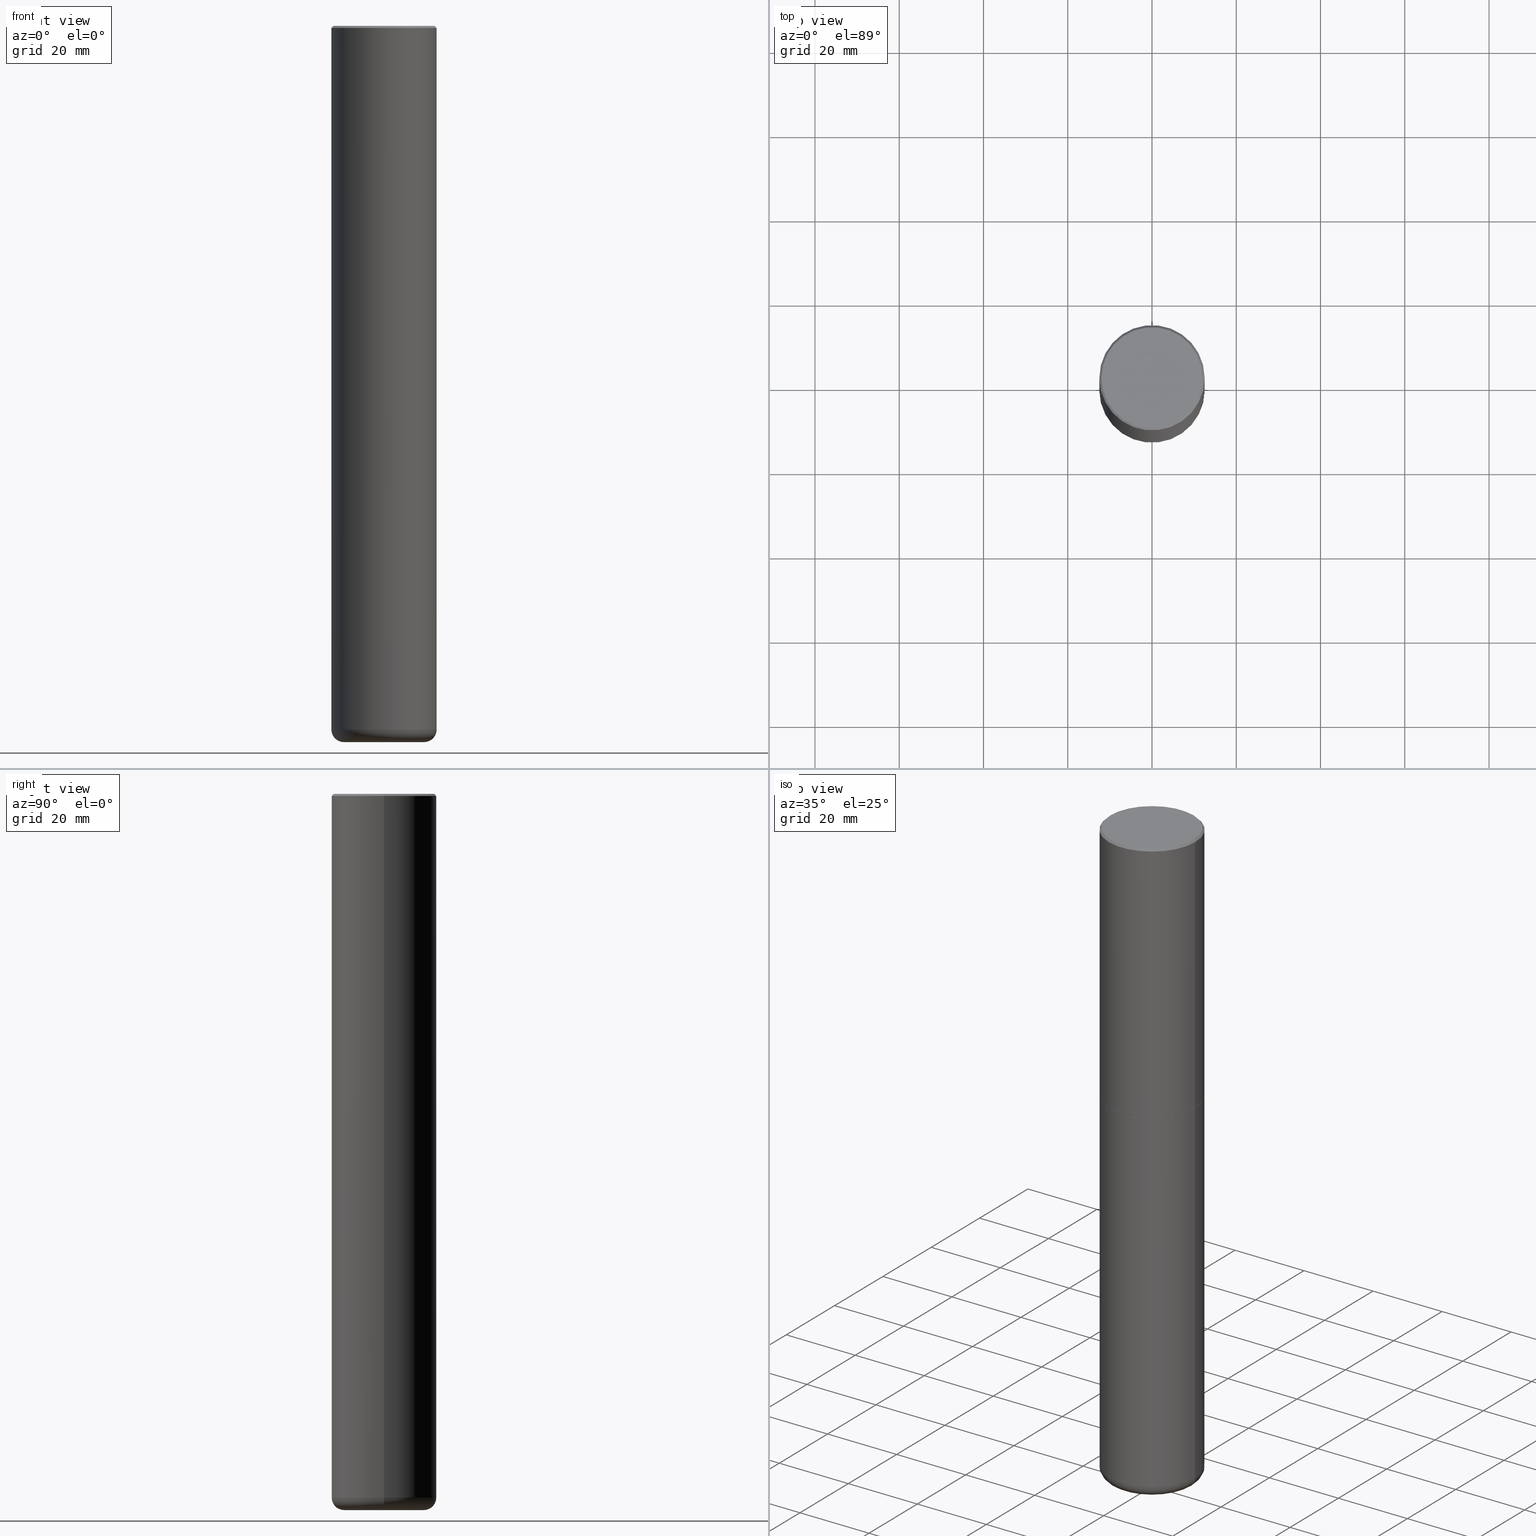
[diagram: canonical four-view strip — front | top / right | iso, engineering-drawing reading convention]
A machine part, canonical four-view strip (front | top / right | iso — engineering-drawing reading convention). The complete STEP part file that produces these views, byte-faithful:
ISO-10303-21;
HEADER;
FILE_DESCRIPTION (( 'STEP AP203' ),
    '1' );
FILE_NAME ('74599.STEP',
    '2024-03-06T15:36:42',
    ( '' ),
    ( '' ),
    'SwSTEP 2.0',
    'SolidWorks 2023',
    '' );
FILE_SCHEMA (( 'CONFIG_CONTROL_DESIGN' ));
ENDSEC;

DATA;
#1 = EDGE_CURVE ( 'NONE', #62, #160, #71, .T. ) ;
#2 = LINE ( 'NONE', #37, #214 ) ;
#3 = DIRECTION ( 'NONE',  ( -6.982962677686266711E-15, -1.000000000000000000, 3.491481338843145583E-15 ) ) ;
#4 = AXIS2_PLACEMENT_3D ( 'NONE', #125, #296, #258 ) ;
#5 = DIRECTION ( 'NONE',  ( 1.000000000000000000, -6.982962677686266711E-15, 4.875605319575677862E-29 ) ) ;
#6 =( NAMED_UNIT ( * ) SI_UNIT ( $, .STERADIAN. ) SOLID_ANGLE_UNIT ( ) );
#7 = PERSON ( 'UNSPECIFIED', 'UNSPECIFIED', 'UNSPECIFIED', ('UNSPECIFIED'), ('UNSPECIFIED'), ('UNSPECIFIED') ) ;
#8 = DATE_AND_TIME ( #367, #358 ) ;
#9 = EDGE_CURVE ( 'NONE', #91, #29, #411, .T. ) ;
#10 = FACE_OUTER_BOUND ( 'NONE', #346, .T. ) ;
#11 = PERSON_AND_ORGANIZATION_ROLE ( 'design_supplier' ) ;
#12 = AXIS2_PLACEMENT_3D ( 'NONE', #114, #243, #376 ) ;
#13 = CARTESIAN_POINT ( 'NONE',  ( -0.3740499999999999381, -2.029800640351526055E-14, -6.574799999999999756 ) ) ;
#14 = AXIS2_PLACEMENT_3D ( 'NONE', #395, #265, #233 ) ;
#15 = EDGE_CURVE ( 'NONE', #123, #277, #137, .T. ) ;
#16 = APPLICATION_PROTOCOL_DEFINITION ( 'international standard', 'config_control_design', 1994, #159 ) ;
#17 = VERTEX_POINT ( 'NONE', #55 ) ;
#18 =( LENGTH_UNIT ( ) NAMED_UNIT ( * ) SI_UNIT ( $, .METRE. ) );
#19 = DIRECTION ( 'NONE',  ( 0.000000000000000000, 0.000000000000000000, 1.000000000000000000 ) ) ;
#20 = DIRECTION ( 'NONE',  ( -2.445468806185136597E-29, 3.491481338843145583E-15, 1.000000000000000000 ) ) ;
#21 = ADVANCED_FACE ( 'NONE', ( #321 ), #188, .T. ) ;
#22 = CARTESIAN_POINT ( 'NONE',  ( 4.890937612370299433E-31, -6.982962677686328587E-17, -0.02000000000000010797 ) ) ;
#23 = APPLICATION_CONTEXT ( 'configuration controlled 3d designs of mechanical parts and assemblies' ) ;
#24 = APPROVAL_ROLE ( '' ) ;
#25 = ORIENTED_EDGE ( 'NONE', *, *, #261, .T. ) ;
#26 = EDGE_LOOP ( 'NONE', ( #416, #380, #273, #324 ) ) ;
#27 = AXIS2_PLACEMENT_3D ( 'NONE', #35, #31, #166 ) ;
#28 = VECTOR ( 'NONE', #76, 39.37007874015748143 ) ;
#29 = VERTEX_POINT ( 'NONE', #52 ) ;
#30 = EDGE_LOOP ( 'NONE', ( #259, #218 ) ) ;
#31 = DIRECTION ( 'NONE',  ( -2.445468806185136597E-29, 3.491481338843145583E-15, 1.000000000000000000 ) ) ;
#32 = EDGE_CURVE ( 'NONE', #250, #29, #126, .T. ) ;
#33 = FACE_OUTER_BOUND ( 'NONE', #194, .T. ) ;
#34 = AXIS2_PLACEMENT_3D ( 'NONE', #106, #169, #272 ) ;
#35 = CARTESIAN_POINT ( 'NONE',  ( 6.739467482965618232E-29, -9.622173421717824390E-15, -2.755900000000000016 ) ) ;
#36 = CC_DESIGN_PERSON_AND_ORGANIZATION_ASSIGNMENT ( #80, #303, ( #43 ) ) ;
#37 = CARTESIAN_POINT ( 'NONE',  ( 0.4911499999999999755, -1.305185554086343257E-14, -2.755900000000000016 ) ) ;
#38 = CARTESIAN_POINT ( 'NONE',  ( 0.4721500000000000696, -3.342703923013975763E-15, -1.664719871138928270E-16 ) ) ;
#39 = CIRCLE ( 'NONE', #318, 0.4921499999999999764 ) ;
#40 = CC_DESIGN_DATE_AND_TIME_ASSIGNMENT ( #145, #267, ( #46 ) ) ;
#41 = CARTESIAN_POINT ( 'NONE',  ( 0.4911499999999999755, -1.305185554086343257E-14, -2.755900000000000016 ) ) ;
#42 = CYLINDRICAL_SURFACE ( 'NONE', #191, 0.4921500000000000874 ) ;
#43 = PRODUCT ( '74599', '74599', '', ( #397 ) ) ;
#44 = APPROVAL_STATUS ( 'not_yet_approved' ) ;
#45 = AXIS2_PLACEMENT_3D ( 'NONE', #308, #20, #149 ) ;
#46 = SECURITY_CLASSIFICATION ( '', '', #108 ) ;
#47 = COORDINATED_UNIVERSAL_TIME_OFFSET ( 5, 0, .BEHIND. ) ;
#48 = ORIENTED_EDGE ( 'NONE', *, *, #15, .F. ) ;
#49 =( CONVERSION_BASED_UNIT ( 'INCH', #340 ) LENGTH_UNIT ( ) NAMED_UNIT ( #330 ) );
#50 = PERSON_AND_ORGANIZATION ( #7, #67 ) ;
#51 = APPLICATION_PROTOCOL_DEFINITION ( 'international standard', 'config_control_design', 1994, #23 ) ;
#52 = CARTESIAN_POINT ( 'NONE',  ( 0.4921499999999999764, -1.305883850354112017E-14, -2.755900000000000016 ) ) ;
#53 = EDGE_LOOP ( 'NONE', ( #187, #192, #351, #175 ) ) ;
#54 = AXIS2_PLACEMENT_3D ( 'NONE', #287, #190, #152 ) ;
#55 = CARTESIAN_POINT ( 'NONE',  ( 0.4921500000000003094, -1.305534702220228032E-14, -2.754900000000000126 ) ) ;
#56 = ORIENTED_EDGE ( 'NONE', *, *, #120, .F. ) ;
#57 = MANIFOLD_SOLID_BREP ( 'Body-Move/Copy2[1]', #286 ) ;
#58 = APPROVAL_PERSON_ORGANIZATION ( #334, #275, #271 ) ;
#59 = ORIENTED_EDGE ( 'NONE', *, *, #100, .F. ) ;
#60 = EDGE_CURVE ( 'NONE', #277, #123, #256, .T. ) ;
#61 = DIRECTION ( 'NONE',  ( 2.438088387897960049E-29, -3.491481338843145188E-15, -1.000000000000000000 ) ) ;
#62 = VERTEX_POINT ( 'NONE', #121 ) ;
#63 = DIRECTION ( 'NONE',  ( 1.000000000000000000, -6.982962677686265922E-15, 0.000000000000000000 ) ) ;
#64 = EDGE_CURVE ( 'NONE', #17, #129, #146, .T. ) ;
#65 = VERTEX_POINT ( 'NONE', #147 ) ;
#66 = CARTESIAN_POINT ( 'NONE',  ( 3.297005828269570364E-15, 0.4721500000000000696, -1.731738907691749419E-15 ) ) ;
#67 = ORGANIZATION ( 'UNSPECIFIED', 'UNSPECIFIED', '' ) ;
#68 = CARTESIAN_POINT ( 'NONE',  ( 3.002068150450346810E-28, -3.815684778453161736E-15, -6.692899999999999849 ) ) ;
#69 = DIRECTION ( 'NONE',  ( -1.000000000000000000, 6.982962677686265922E-15, -4.876176775795935793E-29 ) ) ;
#70 = CARTESIAN_POINT ( 'NONE',  ( 0.4921500000000000874, -3.436665081823296565E-15, 2.399810400207970163E-29 ) ) ;
#71 = CIRCLE ( 'NONE', #95, 0.3740499999999999381 ) ;
#72 = PRODUCT_DEFINITION ( 'UNKNOWN', '', #219, #332 ) ;
#73 = PERSON_AND_ORGANIZATION_ROLE ( 'classification_officer' ) ;
#74 = DIRECTION ( 'NONE',  ( -2.445468806185136597E-29, 3.491481338843145583E-15, 1.000000000000000000 ) ) ;
#75 = ADVANCED_FACE ( 'NONE', ( #251 ), #279, .F. ) ;
#76 = DIRECTION ( 'NONE',  ( -0.7071067811865472397, 2.468850131082253905E-15, -0.7071067811865477948 ) ) ;
#77 = ORIENTED_EDGE ( 'NONE', *, *, #221, .T. ) ;
#78 = DIRECTION ( 'NONE',  ( 0.7071067811867406405, -2.468850131084279700E-15, 0.7071067811863543939 ) ) ;
#79 = APPROVAL_DATE_TIME ( #232, #383 ) ;
#80 = PERSON_AND_ORGANIZATION ( #7, #67 ) ;
#81 = EDGE_LOOP ( 'NONE', ( #153, #157, #151, #156 ) ) ;
#82 = CARTESIAN_POINT ( 'NONE',  ( 1.636727817291649742E-28, -2.336813545274328465E-14, -6.692899999999998961 ) ) ;
#83 = AXIS2_PLACEMENT_3D ( 'NONE', #284, #181, #248 ) ;
#84 = ADVANCED_FACE ( 'NONE', ( #401 ), #398, .T. ) ;
#85 = CARTESIAN_POINT ( 'NONE',  ( 6.737022014159432629E-29, -9.618681940378981383E-15, -2.754900000000000126 ) ) ;
#86 = ORIENTED_EDGE ( 'NONE', *, *, #315, .F. ) ;
#87 = FACE_OUTER_BOUND ( 'NONE', #216, .T. ) ;
#88 = CIRCLE ( 'NONE', #27, 0.4921499999999999764 ) ;
#89 = CARTESIAN_POINT ( 'NONE',  ( 0.000000000000000000, 0.000000000000000000, 0.000000000000000000 ) ) ;
#90 = EDGE_CURVE ( 'NONE', #160, #62, #113, .T. ) ;
#91 = VERTEX_POINT ( 'NONE', #311 ) ;
#92 = DIRECTION ( 'NONE',  ( -1.000000000000000000, 6.982962677686265922E-15, 0.000000000000000000 ) ) ;
#93 = EDGE_CURVE ( 'NONE', #313, #289, #39, .T. ) ;
#94 = DIRECTION ( 'NONE',  ( -2.445468806185136597E-29, 3.491481338843145583E-15, 1.000000000000000000 ) ) ;
#95 = AXIS2_PLACEMENT_3D ( 'NONE', #118, #372, #347 ) ;
#96 = CC_DESIGN_APPROVAL ( #383, ( #46 ) ) ;
#97 = PLANE ( 'NONE',  #390 ) ;
#98 = UNCERTAINTY_MEASURE_WITH_UNIT (LENGTH_MEASURE( 1.000000000000000082E-05 ), #49, 'distance_accuracy_value', 'NONE');
#99 = PLANE ( 'NONE',  #34 ) ;
#100 = EDGE_CURVE ( 'NONE', #65, #144, #103, .T. ) ;
#101 = DIRECTION ( 'NONE',  ( -2.445468806185136877E-29, 3.491481338843145188E-15, 1.000000000000000000 ) ) ;
#102 = EDGE_CURVE ( 'NONE', #109, #250, #193, .T. ) ;
#103 = CIRCLE ( 'NONE', #226, 0.4721500000000000696 ) ;
#104 = FACE_OUTER_BOUND ( 'NONE', #412, .T. ) ;
#105 = ADVANCED_FACE ( 'NONE', ( #323 ), #377, .T. ) ;
#106 = CARTESIAN_POINT ( 'NONE',  ( 6.739467482965618232E-29, -9.622173421717824390E-15, -2.755900000000000016 ) ) ;
#107 = ADVANCED_FACE ( 'NONE', ( #33 ), #292, .T. ) ;
#108 = SECURITY_CLASSIFICATION_LEVEL ( 'unclassified' ) ;
#109 = VERTEX_POINT ( 'NONE', #331 ) ;
#110 = ORIENTED_EDGE ( 'NONE', *, *, #335, .T. ) ;
#111 = CARTESIAN_POINT ( 'NONE',  ( -0.4921499999999999764, 3.366835455046432478E-15, -0.02000000000000010797 ) ) ;
#112 = COORDINATED_UNIVERSAL_TIME_OFFSET ( 5, 0, .BEHIND. ) ;
#113 = CIRCLE ( 'NONE', #350, 0.3740499999999999381 ) ;
#114 = CARTESIAN_POINT ( 'NONE',  ( 6.739467482965618232E-29, -9.622173421717824390E-15, -2.755900000000000016 ) ) ;
#115 = EDGE_CURVE ( 'NONE', #160, #91, #263, .T. ) ;
#116 = DIRECTION ( 'NONE',  ( 1.000000000000000000, -6.982962677686265133E-15, 0.000000000000000000 ) ) ;
#117 = DATE_AND_TIME ( #312, #119 ) ;
#118 = CARTESIAN_POINT ( 'NONE',  ( 1.636727817291649742E-28, -2.336813545274328465E-14, -6.692899999999998961 ) ) ;
#119 = LOCAL_TIME ( 10, 36, 42.00000000000000000, #405 ) ;
#120 = EDGE_CURVE ( 'NONE', #144, #65, #167, .T. ) ;
#121 = CARTESIAN_POINT ( 'NONE',  ( -0.3740499999999999381, -2.008460289110761207E-14, -6.692899999999998961 ) ) ;
#122 = ORIENTED_EDGE ( 'NONE', *, *, #417, .T. ) ;
#123 = VERTEX_POINT ( 'NONE', #381 ) ;
#124 = ORIENTED_EDGE ( 'NONE', *, *, #320, .T. ) ;
#125 = CARTESIAN_POINT ( 'NONE',  ( 1.607846830690603466E-28, -2.295579150662591525E-14, -6.574799999999999756 ) ) ;
#126 = CIRCLE ( 'NONE', #83, 0.4921499999999999764 ) ;
#127 = AXIS2_PLACEMENT_3D ( 'NONE', #13, #305, #366 ) ;
#128 = FACE_OUTER_BOUND ( 'NONE', #81, .T. ) ;
#129 = VERTEX_POINT ( 'NONE', #262 ) ;
#130 = DIRECTION ( 'NONE',  ( -0.7071067811867406405, 7.493145998871051513E-15, 0.7071067811863543939 ) ) ;
#131 = CARTESIAN_POINT ( 'NONE',  ( 4.071020515907357082E-45, -5.812338364483744108E-31, -1.664719871139160491E-16 ) ) ;
#132 = AXIS2_PLACEMENT_3D ( 'NONE', #85, #281, #217 ) ;
#133 = CARTESIAN_POINT ( 'NONE',  ( 6.737022014159432629E-29, -9.618681940378981383E-15, -2.754900000000000126 ) ) ;
#134 = CC_DESIGN_DATE_AND_TIME_ASSIGNMENT ( #205, #142, ( #72 ) ) ;
#135 = PERSON_AND_ORGANIZATION ( #7, #67 ) ;
#136 = FACE_OUTER_BOUND ( 'NONE', #252, .T. ) ;
#137 = CIRCLE ( 'NONE', #54, 0.4911499999999999755 ) ;
#138 = AXIS2_PLACEMENT_3D ( 'NONE', #210, #19, #180 ) ;
#139 = ADVANCED_FACE ( 'NONE', ( #87 ), #97, .F. ) ;
#140 = DIRECTION ( 'NONE',  ( 1.000000000000000000, -6.982962677686265922E-15, 4.876176775795935793E-29 ) ) ;
#141 = PRODUCT_DEFINITION_SHAPE ( 'NONE', 'NONE',  #72 ) ;
#142 = DATE_TIME_ROLE ( 'creation_date' ) ;
#143 = ORIENTED_EDGE ( 'NONE', *, *, #375, .T. ) ;
#144 = VERTEX_POINT ( 'NONE', #38 ) ;
#145 = DATE_AND_TIME ( #371, #293 ) ;
#146 = CIRCLE ( 'NONE', #132, 0.4921500000000003094 ) ;
#147 = CARTESIAN_POINT ( 'NONE',  ( -0.4721500000000000696, 3.331920641658001618E-15, -1.664719871139392219E-16 ) ) ;
#148 = CC_DESIGN_PERSON_AND_ORGANIZATION_ASSIGNMENT ( #135, #177, ( #219 ) ) ;
#149 = DIRECTION ( 'NONE',  ( 1.000000000000000000, -6.982962677686264344E-15, 0.000000000000000000 ) ) ;
#150 = PERSON_AND_ORGANIZATION ( #7, #67 ) ;
#151 = ORIENTED_EDGE ( 'NONE', *, *, #9, .T. ) ;
#152 = DIRECTION ( 'NONE',  ( 1.000000000000000000, -6.982962677686264344E-15, 0.000000000000000000 ) ) ;
#153 = ORIENTED_EDGE ( 'NONE', *, *, #102, .F. ) ;
#154 = DIRECTION ( 'NONE',  ( -2.445468806185136597E-29, 3.491481338843145583E-15, 1.000000000000000000 ) ) ;
#155 = ORIENTED_EDGE ( 'NONE', *, *, #344, .T. ) ;
#156 = ORIENTED_EDGE ( 'NONE', *, *, #32, .F. ) ;
#157 = ORIENTED_EDGE ( 'NONE', *, *, #400, .T. ) ;
#158 = CARTESIAN_POINT ( 'NONE',  ( -0.4911499999999999755, -6.132342775032092501E-15, -2.755900000000000016 ) ) ;
#159 = APPLICATION_CONTEXT ( 'configuration controlled 3d designs of mechanical parts and assemblies' ) ;
#160 = VERTEX_POINT ( 'NONE', #227 ) ;
#161 = CARTESIAN_POINT ( 'NONE',  ( 0.000000000000000000, 0.000000000000000000, 0.000000000000000000 ) ) ;
#162 = CIRCLE ( 'NONE', #362, 0.4921499999999999764 ) ;
#163 = ORIENTED_EDGE ( 'NONE', *, *, #335, .F. ) ;
#164 = DIRECTION ( 'NONE',  ( 1.000000000000000000, -6.982962677686265922E-15, 4.876176775795935793E-29 ) ) ;
#165 = DIRECTION ( 'NONE',  ( 1.000000000000000000, -6.982962677686270655E-15, 0.000000000000000000 ) ) ;
#166 = DIRECTION ( 'NONE',  ( 1.000000000000000000, -6.982962677686265922E-15, 0.000000000000000000 ) ) ;
#167 = CIRCLE ( 'NONE', #189, 0.4721500000000000696 ) ;
#168 = LOCAL_TIME ( 10, 36, 42.00000000000000000, #47 ) ;
#169 = DIRECTION ( 'NONE',  ( 2.438088387897960049E-29, -3.491481338843145188E-15, -1.000000000000000000 ) ) ;
#170 = CALENDAR_DATE ( 2024, 6, 3 ) ;
#171 = DIRECTION ( 'NONE',  ( -2.445468806185136597E-29, 3.491481338843145583E-15, 1.000000000000000000 ) ) ;
#172 = APPROVAL_DATE_TIME ( #8, #275 ) ;
#173 = AXIS2_PLACEMENT_3D ( 'NONE', #220, #355, #290 ) ;
#174 = LOCAL_TIME ( 10, 36, 42.00000000000000000, #338 ) ;
#175 = ORIENTED_EDGE ( 'NONE', *, *, #261, .F. ) ;
#176 = DIRECTION ( 'NONE',  ( -2.445468806185136597E-29, 3.491481338843145583E-15, 1.000000000000000000 ) ) ;
#177 = PERSON_AND_ORGANIZATION_ROLE ( 'creator' ) ;
#178 = ORIENTED_EDGE ( 'NONE', *, *, #93, .F. ) ;
#179 = COORDINATED_UNIVERSAL_TIME_OFFSET ( 5, 0, .BEHIND. ) ;
#180 = DIRECTION ( 'NONE',  ( 1.000000000000000000, 0.000000000000000000, 0.000000000000000000 ) ) ;
#181 = DIRECTION ( 'NONE',  ( -2.445468806185136597E-29, 3.491481338843145583E-15, 1.000000000000000000 ) ) ;
#182 = ADVANCED_FACE ( 'NONE', ( #359 ), #326, .T. ) ;
#183 = AXIS2_PLACEMENT_3D ( 'NONE', #225, #253, #92 ) ;
#184 = ORIENTED_EDGE ( 'NONE', *, *, #200, .T. ) ;
#185 = EDGE_LOOP ( 'NONE', ( #317, #235, #86, #349 ) ) ;
#186 = ADVANCED_FACE ( 'NONE', ( #325 ), #353, .T. ) ;
#187 = ORIENTED_EDGE ( 'NONE', *, *, #60, .T. ) ;
#188 = TOROIDAL_SURFACE ( 'NONE', #206, 0.3740499999999999381, 0.1180999999999994832 ) ;
#189 = AXIS2_PLACEMENT_3D ( 'NONE', #222, #388, #357 ) ;
#190 = DIRECTION ( 'NONE',  ( -2.445468806185136597E-29, 3.491481338843145583E-15, 1.000000000000000000 ) ) ;
#191 = AXIS2_PLACEMENT_3D ( 'NONE', #302, #176, #333 ) ;
#192 = ORIENTED_EDGE ( 'NONE', *, *, #212, .T. ) ;
#193 = LINE ( 'NONE', #384, #370 ) ;
#194 = EDGE_LOOP ( 'NONE', ( #56, #124, #339, #382 ) ) ;
#195 = CYLINDRICAL_SURFACE ( 'NONE', #246, 0.4921499999999999764 ) ;
#196 = FACE_OUTER_BOUND ( 'NONE', #348, .T. ) ;
#197 = CIRCLE ( 'NONE', #352, 0.4921499999999999764 ) ;
#198 = DIRECTION ( 'NONE',  ( -2.445468806185136597E-29, 3.491481338843145583E-15, 1.000000000000000000 ) ) ;
#199 = MANIFOLD_SOLID_BREP ( 'Body-Move/Copy2[2]', #202 ) ;
#200 = EDGE_CURVE ( 'NONE', #29, #250, #88, .T. ) ;
#201 = CARTESIAN_POINT ( 'NONE',  ( 1.607846830690603466E-28, -2.295579150662591525E-14, -6.574799999999999756 ) ) ;
#202 = CLOSED_SHELL ( 'NONE', ( #84, #373, #107, #285, #215, #182, #75, #139 ) ) ;
#203 = CARTESIAN_POINT ( 'NONE',  ( -0.4921500000000000874, 3.496936074043333686E-15, -2.420853904668952350E-29 ) ) ;
#204 = CARTESIAN_POINT ( 'NONE',  ( 0.000000000000000000, 0.000000000000000000, 0.000000000000000000 ) ) ;
#205 = DATE_AND_TIME ( #300, #168 ) ;
#206 = AXIS2_PLACEMENT_3D ( 'NONE', #341, #154, #408 ) ;
#207 = VECTOR ( 'NONE', #301, 39.37007874015748143 ) ;
#208 = LINE ( 'NONE', #363, #28 ) ;
#209 = SHAPE_DEFINITION_REPRESENTATION ( #141, #237 ) ;
#210 = CARTESIAN_POINT ( 'NONE',  ( 0.000000000000000000, 0.000000000000000000, 0.000000000000000000 ) ) ;
#211 = DIRECTION ( 'NONE',  ( -2.445468806185136597E-29, 3.491481338843145583E-15, 1.000000000000000000 ) ) ;
#212 = EDGE_CURVE ( 'NONE', #123, #129, #224, .T. ) ;
#213 = ORIENTED_EDGE ( 'NONE', *, *, #400, .F. ) ;
#214 = VECTOR ( 'NONE', #78, 39.37007874015748143 ) ;
#215 = ADVANCED_FACE ( 'NONE', ( #196 ), #257, .T. ) ;
#216 = EDGE_LOOP ( 'NONE', ( #406, #291 ) ) ;
#217 = DIRECTION ( 'NONE',  ( 1.000000000000000000, -6.982962677686265922E-15, 0.000000000000000000 ) ) ;
#218 = ORIENTED_EDGE ( 'NONE', *, *, #1, .F. ) ;
#219 = PRODUCT_DEFINITION_FORMATION_WITH_SPECIFIED_SOURCE ( 'ANY', '', #43, .NOT_KNOWN. ) ;
#220 = CARTESIAN_POINT ( 'NONE',  ( 6.739467482965618232E-29, -9.622173421717824390E-15, -2.755900000000000016 ) ) ;
#221 = EDGE_CURVE ( 'NONE', #289, #313, #162, .T. ) ;
#222 = CARTESIAN_POINT ( 'NONE',  ( 4.071020515907357082E-45, -5.812338364483744108E-31, -1.664719871139160491E-16 ) ) ;
#223 = ORIENTED_EDGE ( 'NONE', *, *, #375, .F. ) ;
#224 = LINE ( 'NONE', #158, #387 ) ;
#225 = CARTESIAN_POINT ( 'NONE',  ( 4.890937612370299433E-31, -6.982962677686328587E-17, -0.02000000000000010797 ) ) ;
#226 = AXIS2_PLACEMENT_3D ( 'NONE', #131, #94, #5 ) ;
#227 = CARTESIAN_POINT ( 'NONE',  ( 0.3740499999999999381, -2.598011264233183059E-14, -6.692899999999998961 ) ) ;
#228 = DIRECTION ( 'NONE',  ( -2.445468806185136597E-29, 3.491481338843145583E-15, 1.000000000000000000 ) ) ;
#229 = CYLINDRICAL_SURFACE ( 'NONE', #410, 0.4921499999999999764 ) ;
#230 =( GEOMETRIC_REPRESENTATION_CONTEXT ( 3 ) GLOBAL_UNCERTAINTY_ASSIGNED_CONTEXT ( ( #98 ) ) GLOBAL_UNIT_ASSIGNED_CONTEXT ( ( #49, #298, #6 ) ) REPRESENTATION_CONTEXT ( 'NONE', 'WORKASPACE' ) );
#231 = CARTESIAN_POINT ( 'NONE',  ( 1.607846830690603466E-28, -2.295579150662591525E-14, -6.574799999999999756 ) ) ;
#232 = DATE_AND_TIME ( #170, #174 ) ;
#233 = DIRECTION ( 'NONE',  ( -1.000000000000000000, 6.982962677686265922E-15, 0.000000000000000000 ) ) ;
#234 = PERSON_AND_ORGANIZATION ( #7, #67 ) ;
#235 = ORIENTED_EDGE ( 'NONE', *, *, #407, .T. ) ;
#236 = DIRECTION ( 'NONE',  ( 1.000000000000000000, -6.982962677686265922E-15, 0.000000000000000000 ) ) ;
#237 = ADVANCED_BREP_SHAPE_REPRESENTATION ( '74599', ( #57, #199, #138 ), #230 ) ;
#238 = VECTOR ( 'NONE', #314, 39.37007874015748143 ) ;
#239 = APPROVAL_ROLE ( '' ) ;
#240 = CIRCLE ( 'NONE', #127, 0.1180999999999994832 ) ;
#241 = ORIENTED_EDGE ( 'NONE', *, *, #64, .T. ) ;
#242 = ORIENTED_EDGE ( 'NONE', *, *, #212, .F. ) ;
#243 = DIRECTION ( 'NONE',  ( -2.445468806185136597E-29, 3.491481338843145583E-15, 1.000000000000000000 ) ) ;
#244 = CC_DESIGN_PERSON_AND_ORGANIZATION_ASSIGNMENT ( #234, #73, ( #46 ) ) ;
#245 = DIRECTION ( 'NONE',  ( -2.445468806185136597E-29, 3.491481338843145583E-15, 1.000000000000000000 ) ) ;
#246 = AXIS2_PLACEMENT_3D ( 'NONE', #161, #329, #294 ) ;
#247 = CIRCLE ( 'NONE', #270, 0.4921500000000003094 ) ;
#248 = DIRECTION ( 'NONE',  ( 1.000000000000000000, -6.982962677686265922E-15, 0.000000000000000000 ) ) ;
#249 = ADVANCED_FACE ( 'NONE', ( #128 ), #195, .T. ) ;
#250 = VERTEX_POINT ( 'NONE', #418 ) ;
#251 = FACE_OUTER_BOUND ( 'NONE', #280, .T. ) ;
#252 = EDGE_LOOP ( 'NONE', ( #413, #59, #122, #77 ) ) ;
#253 = DIRECTION ( 'NONE',  ( 2.445468806185136597E-29, -3.491481338843145583E-15, -1.000000000000000000 ) ) ;
#254 = ORIENTED_EDGE ( 'NONE', *, *, #221, .F. ) ;
#255 = PRODUCT_RELATED_PRODUCT_CATEGORY ( 'detail', '', ( #43 ) ) ;
#256 = CIRCLE ( 'NONE', #45, 0.4911499999999999755 ) ;
#257 = CYLINDRICAL_SURFACE ( 'NONE', #415, 0.4921500000000000874 ) ;
#258 = DIRECTION ( 'NONE',  ( 1.000000000000000000, -6.982962677686265922E-15, 4.883557194083112901E-29 ) ) ;
#259 = ORIENTED_EDGE ( 'NONE', *, *, #90, .F. ) ;
#260 = CARTESIAN_POINT ( 'NONE',  ( 0.3740499999999999381, -2.556776869621446119E-14, -6.574799999999999756 ) ) ;
#261 = EDGE_CURVE ( 'NONE', #277, #17, #2, .T. ) ;
#262 = CARTESIAN_POINT ( 'NONE',  ( -0.4921500000000003094, -1.347319709534584908E-15, -2.754900000000000126 ) ) ;
#263 = CIRCLE ( 'NONE', #345, 0.1180999999999994832 ) ;
#264 = ADVANCED_FACE ( 'NONE', ( #104 ), #99, .F. ) ;
#265 = DIRECTION ( 'NONE',  ( 2.445468806185136597E-29, -3.491481338843145583E-15, -1.000000000000000000 ) ) ;
#266 = FACE_OUTER_BOUND ( 'NONE', #26, .T. ) ;
#267 = DATE_TIME_ROLE ( 'classification_date' ) ;
#268 = CARTESIAN_POINT ( 'NONE',  ( 0.4921499999999999764, -3.446223716380122349E-15, -0.02000000000000010797 ) ) ;
#269 = AXIS2_PLACEMENT_3D ( 'NONE', #68, #61, #69 ) ;
#270 = AXIS2_PLACEMENT_3D ( 'NONE', #133, #274, #336 ) ;
#271 = APPROVAL_ROLE ( '' ) ;
#272 = DIRECTION ( 'NONE',  ( -1.000000000000000000, 6.982962677686265922E-15, -4.876176775795935793E-29 ) ) ;
#273 = ORIENTED_EDGE ( 'NONE', *, *, #200, .F. ) ;
#274 = DIRECTION ( 'NONE',  ( -2.445468806185136597E-29, 3.491481338843145583E-15, 1.000000000000000000 ) ) ;
#275 = APPROVAL ( #44, 'UNSPECIFIED' ) ;
#276 = PERSON_AND_ORGANIZATION ( #7, #67 ) ;
#277 = VERTEX_POINT ( 'NONE', #41 ) ;
#278 = PERSON_AND_ORGANIZATION_ROLE ( 'creator' ) ;
#279 = PLANE ( 'NONE',  #309 ) ;
#280 = EDGE_LOOP ( 'NONE', ( #374, #48 ) ) ;
#281 = DIRECTION ( 'NONE',  ( -2.445468806185136597E-29, 3.491481338843145583E-15, 1.000000000000000000 ) ) ;
#282 = APPROVAL_STATUS ( 'not_yet_approved' ) ;
#283 = EDGE_LOOP ( 'NONE', ( #242, #342, #25, #223 ) ) ;
#284 = CARTESIAN_POINT ( 'NONE',  ( 6.739467482965618232E-29, -9.622173421717824390E-15, -2.755900000000000016 ) ) ;
#285 = ADVANCED_FACE ( 'NONE', ( #136 ), #337, .T. ) ;
#286 = CLOSED_SHELL ( 'NONE', ( #403, #105, #264, #249, #21, #186 ) ) ;
#287 = CARTESIAN_POINT ( 'NONE',  ( 6.739467482965618232E-29, -9.622173421717824390E-15, -2.755900000000000016 ) ) ;
#288 = ORIENTED_EDGE ( 'NONE', *, *, #344, .F. ) ;
#289 = VERTEX_POINT ( 'NONE', #111 ) ;
#290 = DIRECTION ( 'NONE',  ( 1.000000000000000000, -6.982962677686264344E-15, 0.000000000000000000 ) ) ;
#291 = ORIENTED_EDGE ( 'NONE', *, *, #120, .T. ) ;
#292 = CONICAL_SURFACE ( 'NONE', #183, 0.4921499999999999764, 0.7853981633974479459 ) ;
#293 = LOCAL_TIME ( 10, 36, 42.00000000000000000, #112 ) ;
#294 = DIRECTION ( 'NONE',  ( 1.000000000000000000, -6.982962677686265922E-15, 4.876176775795935793E-29 ) ) ;
#295 = CARTESIAN_POINT ( 'NONE',  ( 4.890937612370299433E-31, -6.982962677686328587E-17, -0.02000000000000010797 ) ) ;
#296 = DIRECTION ( 'NONE',  ( -2.445468806185136597E-29, 3.491481338843145583E-15, 1.000000000000000000 ) ) ;
#297 = APPROVAL_PERSON_ORGANIZATION ( #50, #383, #239 ) ;
#298 =( NAMED_UNIT ( * ) PLANE_ANGLE_UNIT ( ) SI_UNIT ( $, .RADIAN. ) );
#299 = APPROVAL ( #282, 'UNSPECIFIED' ) ;
#300 = CALENDAR_DATE ( 2024, 6, 3 ) ;
#301 = DIRECTION ( 'NONE',  ( -2.445468806185136877E-29, 3.491481338843145188E-15, 1.000000000000000000 ) ) ;
#302 = CARTESIAN_POINT ( 'NONE',  ( 0.000000000000000000, 0.000000000000000000, 0.000000000000000000 ) ) ;
#303 = PERSON_AND_ORGANIZATION_ROLE ( 'design_owner' ) ;
#304 = APPROVAL_PERSON_ORGANIZATION ( #150, #299, #24 ) ;
#305 = DIRECTION ( 'NONE',  ( 7.105427357601001859E-15, 1.000000000000000000, -3.491481338843145583E-15 ) ) ;
#306 = APPROVAL_STATUS ( 'not_yet_approved' ) ;
#307 = ORIENTED_EDGE ( 'NONE', *, *, #407, .F. ) ;
#308 = CARTESIAN_POINT ( 'NONE',  ( 6.739467482965618232E-29, -9.622173421717824390E-15, -2.755900000000000016 ) ) ;
#309 = AXIS2_PLACEMENT_3D ( 'NONE', #404, #343, #379 ) ;
#310 = VECTOR ( 'NONE', #391, 39.37007874015748143 ) ;
#311 = CARTESIAN_POINT ( 'NONE',  ( 0.4921499999999996988, -2.639245658844920945E-14, -6.574799999999999756 ) ) ;
#312 = CALENDAR_DATE ( 2024, 6, 3 ) ;
#313 = VERTEX_POINT ( 'NONE', #389 ) ;
#314 = DIRECTION ( 'NONE',  ( -2.445468806185136877E-29, 3.491481338843145188E-15, 1.000000000000000000 ) ) ;
#315 = EDGE_CURVE ( 'NONE', #91, #109, #409, .T. ) ;
#316 = CARTESIAN_POINT ( 'NONE',  ( 0.4921499999999999764, -3.436665081823295777E-15, 2.399810400207969603E-29 ) ) ;
#317 = ORIENTED_EDGE ( 'NONE', *, *, #90, .T. ) ;
#318 = AXIS2_PLACEMENT_3D ( 'NONE', #22, #245, #385 ) ;
#319 = CC_DESIGN_APPROVAL ( #275, ( #219 ) ) ;
#320 = EDGE_CURVE ( 'NONE', #144, #313, #394, .T. ) ;
#321 = FACE_OUTER_BOUND ( 'NONE', #322, .T. ) ;
#322 = EDGE_LOOP ( 'NONE', ( #307, #368, #402, #213 ) ) ;
#323 = FACE_OUTER_BOUND ( 'NONE', #185, .T. ) ;
#324 = ORIENTED_EDGE ( 'NONE', *, *, #9, .F. ) ;
#325 = FACE_OUTER_BOUND ( 'NONE', #30, .T. ) ;
#326 = CONICAL_SURFACE ( 'NONE', #173, 0.4911499999999999755, 0.7853981633977213939 ) ;
#327 = AXIS2_PLACEMENT_3D ( 'NONE', #231, #228, #236 ) ;
#328 = DIRECTION ( 'NONE',  ( -2.445468806185136597E-29, 3.491481338843145583E-15, 1.000000000000000000 ) ) ;
#329 = DIRECTION ( 'NONE',  ( -2.445468806185136597E-29, 3.491481338843145583E-15, 1.000000000000000000 ) ) ;
#330 = DIMENSIONAL_EXPONENTS ( 1.000000000000000000, 0.000000000000000000, 0.000000000000000000, 0.000000000000000000, 0.000000000000000000, 0.000000000000000000, 0.000000000000000000 ) ;
#331 = CARTESIAN_POINT ( 'NONE',  ( -0.4921499999999996988, -1.945885543258258788E-14, -6.574799999999999756 ) ) ;
#332 = DESIGN_CONTEXT ( 'detailed design', #159, 'design' ) ;
#333 = DIRECTION ( 'NONE',  ( 1.000000000000000000, -6.982962677686265922E-15, 4.876176775795935793E-29 ) ) ;
#334 = PERSON_AND_ORGANIZATION ( #7, #67 ) ;
#335 = EDGE_CURVE ( 'NONE', #129, #289, #361, .T. ) ;
#336 = DIRECTION ( 'NONE',  ( 1.000000000000000000, -6.982962677686265922E-15, 0.000000000000000000 ) ) ;
#337 = CONICAL_SURFACE ( 'NONE', #14, 0.4921499999999999764, 0.7853981633974479459 ) ;
#338 = COORDINATED_UNIVERSAL_TIME_OFFSET ( 5, 0, .BEHIND. ) ;
#339 = ORIENTED_EDGE ( 'NONE', *, *, #93, .T. ) ;
#340 = LENGTH_MEASURE_WITH_UNIT ( LENGTH_MEASURE( 0.02539999999999999897 ), #18 );
#341 = CARTESIAN_POINT ( 'NONE',  ( 1.607846830690603466E-28, -2.295579150662591525E-14, -6.574799999999999756 ) ) ;
#342 = ORIENTED_EDGE ( 'NONE', *, *, #15, .T. ) ;
#343 = DIRECTION ( 'NONE',  ( -2.438088387897960049E-29, 3.491481338843145188E-15, 1.000000000000000000 ) ) ;
#344 = EDGE_CURVE ( 'NONE', #17, #313, #364, .T. ) ;
#345 = AXIS2_PLACEMENT_3D ( 'NONE', #260, #3, #165 ) ;
#346 = EDGE_LOOP ( 'NONE', ( #241, #110, #178, #288 ) ) ;
#347 = DIRECTION ( 'NONE',  ( 1.000000000000000000, -6.982962677686265133E-15, 0.000000000000000000 ) ) ;
#348 = EDGE_LOOP ( 'NONE', ( #163, #143, #155, #254 ) ) ;
#349 = ORIENTED_EDGE ( 'NONE', *, *, #115, .F. ) ;
#350 = AXIS2_PLACEMENT_3D ( 'NONE', #82, #211, #116 ) ;
#351 = ORIENTED_EDGE ( 'NONE', *, *, #64, .F. ) ;
#352 = AXIS2_PLACEMENT_3D ( 'NONE', #201, #74, #369 ) ;
#353 = PLANE ( 'NONE',  #269 ) ;
#354 = ORIENTED_EDGE ( 'NONE', *, *, #32, .T. ) ;
#355 = DIRECTION ( 'NONE',  ( -2.445468806185136597E-29, 3.491481338843145583E-15, 1.000000000000000000 ) ) ;
#356 = CC_DESIGN_PERSON_AND_ORGANIZATION_ASSIGNMENT ( #276, #278, ( #72 ) ) ;
#357 = DIRECTION ( 'NONE',  ( 1.000000000000000000, -6.982962677686266711E-15, 4.875605319575677862E-29 ) ) ;
#358 = LOCAL_TIME ( 10, 36, 42.00000000000000000, #179 ) ;
#359 = FACE_OUTER_BOUND ( 'NONE', #283, .T. ) ;
#360 = DIRECTION ( 'NONE',  ( -2.445468806185136877E-29, 3.491481338843145188E-15, 1.000000000000000000 ) ) ;
#361 = LINE ( 'NONE', #203, #378 ) ;
#362 = AXIS2_PLACEMENT_3D ( 'NONE', #295, #198, #63 ) ;
#363 = CARTESIAN_POINT ( 'NONE',  ( -0.4921499999999999764, 3.366835455046432478E-15, -0.02000000000000010797 ) ) ;
#364 = LINE ( 'NONE', #70, #207 ) ;
#365 = CC_DESIGN_PERSON_AND_ORGANIZATION_ASSIGNMENT ( #396, #11, ( #219 ) ) ;
#366 = DIRECTION ( 'NONE',  ( -1.000000000000000000, 7.105427357601001859E-15, 0.000000000000000000 ) ) ;
#367 = CALENDAR_DATE ( 2024, 6, 3 ) ;
#368 = ORIENTED_EDGE ( 'NONE', *, *, #1, .T. ) ;
#369 = DIRECTION ( 'NONE',  ( 1.000000000000000000, -6.982962677686265922E-15, 0.000000000000000000 ) ) ;
#370 = VECTOR ( 'NONE', #360, 39.37007874015748143 ) ;
#371 = CALENDAR_DATE ( 2024, 6, 3 ) ;
#372 = DIRECTION ( 'NONE',  ( -2.445468806185136597E-29, 3.491481338843145583E-15, 1.000000000000000000 ) ) ;
#373 = ADVANCED_FACE ( 'NONE', ( #10 ), #42, .T. ) ;
#374 = ORIENTED_EDGE ( 'NONE', *, *, #60, .F. ) ;
#375 = EDGE_CURVE ( 'NONE', #129, #17, #247, .T. ) ;
#376 = DIRECTION ( 'NONE',  ( 1.000000000000000000, -6.982962677686264344E-15, 0.000000000000000000 ) ) ;
#377 = TOROIDAL_SURFACE ( 'NONE', #4, 0.3740499999999999381, 0.1180999999999994832 ) ;
#378 = VECTOR ( 'NONE', #101, 39.37007874015748143 ) ;
#379 = DIRECTION ( 'NONE',  ( 1.000000000000000000, -6.982962677686265922E-15, 4.876176775795935793E-29 ) ) ;
#380 = ORIENTED_EDGE ( 'NONE', *, *, #102, .T. ) ;
#381 = CARTESIAN_POINT ( 'NONE',  ( -0.4911499999999999755, -6.127044320683869310E-15, -2.755900000000000016 ) ) ;
#382 = ORIENTED_EDGE ( 'NONE', *, *, #417, .F. ) ;
#383 = APPROVAL ( #306, 'UNSPECIFIED' ) ;
#384 = CARTESIAN_POINT ( 'NONE',  ( -0.4921499999999999764, 3.496936074043332897E-15, -2.420853904668951509E-29 ) ) ;
#385 = DIRECTION ( 'NONE',  ( 1.000000000000000000, -6.982962677686265922E-15, 0.000000000000000000 ) ) ;
#386 = DIRECTION ( 'NONE',  ( 2.438088387897960049E-29, -3.491481338843145188E-15, -1.000000000000000000 ) ) ;
#387 = VECTOR ( 'NONE', #130, 39.37007874015748143 ) ;
#388 = DIRECTION ( 'NONE',  ( -2.445468806185136597E-29, 3.491481338843145583E-15, 1.000000000000000000 ) ) ;
#389 = CARTESIAN_POINT ( 'NONE',  ( 0.4921499999999999764, -3.446223716380122349E-15, -0.02000000000000010797 ) ) ;
#390 = AXIS2_PLACEMENT_3D ( 'NONE', #66, #386, #414 ) ;
#391 = DIRECTION ( 'NONE',  ( 0.7071067811865472397, -7.319954787623254468E-15, -0.7071067811865477948 ) ) ;
#392 = CC_DESIGN_SECURITY_CLASSIFICATION ( #46, ( #219 ) ) ;
#393 = APPROVAL_DATE_TIME ( #117, #299 ) ;
#394 = LINE ( 'NONE', #268, #310 ) ;
#395 = CARTESIAN_POINT ( 'NONE',  ( 4.890937612370299433E-31, -6.982962677686328587E-17, -0.02000000000000010797 ) ) ;
#396 = PERSON_AND_ORGANIZATION ( #7, #67 ) ;
#397 = MECHANICAL_CONTEXT ( 'NONE', #23, 'mechanical' ) ;
#398 = CONICAL_SURFACE ( 'NONE', #12, 0.4911499999999999755, 0.7853981633977213939 ) ;
#399 = CC_DESIGN_APPROVAL ( #299, ( #72 ) ) ;
#400 = EDGE_CURVE ( 'NONE', #109, #91, #197, .T. ) ;
#401 = FACE_OUTER_BOUND ( 'NONE', #53, .T. ) ;
#402 = ORIENTED_EDGE ( 'NONE', *, *, #115, .T. ) ;
#403 = ADVANCED_FACE ( 'NONE', ( #266 ), #229, .T. ) ;
#404 = CARTESIAN_POINT ( 'NONE',  ( 6.739467482965618232E-29, -9.622173421717824390E-15, -2.755900000000000016 ) ) ;
#405 = COORDINATED_UNIVERSAL_TIME_OFFSET ( 5, 0, .BEHIND. ) ;
#406 = ORIENTED_EDGE ( 'NONE', *, *, #100, .T. ) ;
#407 = EDGE_CURVE ( 'NONE', #62, #109, #240, .T. ) ;
#408 = DIRECTION ( 'NONE',  ( 1.000000000000000000, -6.982962677686265922E-15, 4.883557194083112901E-29 ) ) ;
#409 = CIRCLE ( 'NONE', #327, 0.4921499999999999764 ) ;
#410 = AXIS2_PLACEMENT_3D ( 'NONE', #204, #171, #140 ) ;
#411 = LINE ( 'NONE', #316, #238 ) ;
#412 = EDGE_LOOP ( 'NONE', ( #184, #354 ) ) ;
#413 = ORIENTED_EDGE ( 'NONE', *, *, #320, .F. ) ;
#414 = DIRECTION ( 'NONE',  ( -1.000000000000000000, 6.982962677686265922E-15, -4.876176775795935793E-29 ) ) ;
#415 = AXIS2_PLACEMENT_3D ( 'NONE', #89, #328, #164 ) ;
#416 = ORIENTED_EDGE ( 'NONE', *, *, #315, .T. ) ;
#417 = EDGE_CURVE ( 'NONE', #65, #289, #208, .T. ) ;
#418 = CARTESIAN_POINT ( 'NONE',  ( -0.4921499999999999764, -1.279204639012853613E-14, -2.755900000000000016 ) ) ;
ENDSEC;
END-ISO-10303-21;
